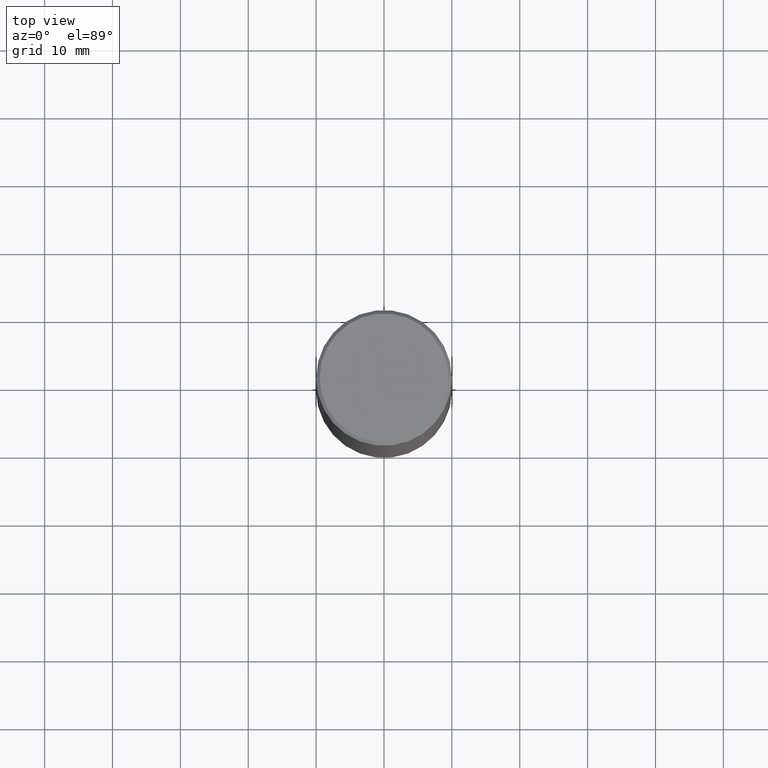
[diagram: clean part render]
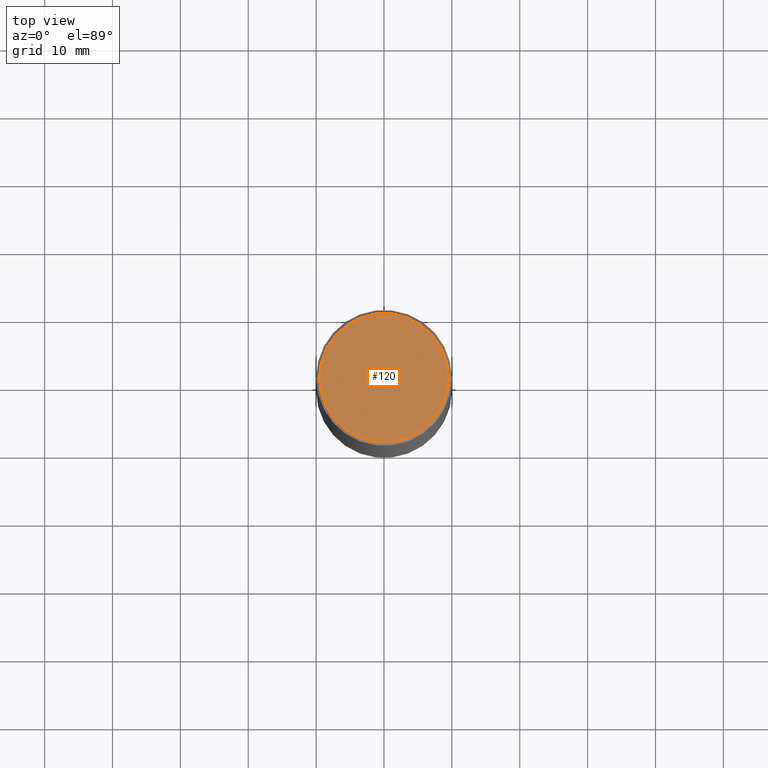
[diagram: same view with one face highlighted and labeled with its STEP entity id]
A machine part, top view. The second image highlights one B-rep face of the part: STEP entity #120.
In plain terms, the highlighted planar face has unit normal (0, -0, -1).
Its self-contained STEP definition (entity closure, byte-faithful):
#11 = CARTESIAN_POINT ( 'NONE',  ( 2.609533152651355831E-15, 0.3736999999999997546, -1.172442689132570013E-15 ) ) ;
#27 = CIRCLE ( 'NONE', #113, 0.3736999999999997546 ) ;
#53 = CARTESIAN_POINT ( 'NONE',  ( -6.471878768878362764E-45, 9.240127656358773134E-31, 2.646477743862255178E-16 ) ) ;
#60 = DIRECTION ( 'NONE',  ( -2.445468806185136597E-29, 3.491481338843145583E-15, 1.000000000000000000 ) ) ;
#87 = DIRECTION ( 'NONE',  ( -2.445468806185136597E-29, 3.491481338843145583E-15, 1.000000000000000000 ) ) ;
#98 = DIRECTION ( 'NONE',  ( 2.438088387897960049E-29, -3.491481338843145188E-15, -1.000000000000000000 ) ) ;
#101 = FACE_OUTER_BOUND ( 'NONE', #166, .T. ) ;
#113 = AXIS2_PLACEMENT_3D ( 'NONE', #53, #87, #152 ) ;
#120 = ADVANCED_FACE ( 'NONE', ( #101 ), #235, .F. ) ;
#126 = DIRECTION ( 'NONE',  ( 1.000000000000000000, -6.982962677686266711E-15, 4.877734241229879050E-29 ) ) ;
#152 = DIRECTION ( 'NONE',  ( 1.000000000000000000, -6.982962677686266711E-15, 4.877734241229879050E-29 ) ) ;
#166 = EDGE_LOOP ( 'NONE', ( #268, #413 ) ) ;
#172 = AXIS2_PLACEMENT_3D ( 'NONE', #181, #60, #126 ) ;
#176 = CARTESIAN_POINT ( 'NONE',  ( 0.3736999999999997546, -2.667287895133366781E-15, 2.646477743862439574E-16 ) ) ;
#181 = CARTESIAN_POINT ( 'NONE',  ( -6.471878768878362764E-45, 9.240127656358773134E-31, 2.646477743862255178E-16 ) ) ;
#199 = AXIS2_PLACEMENT_3D ( 'NONE', #11, #98, #328 ) ;
#235 = PLANE ( 'NONE',  #199 ) ;
#246 = VERTEX_POINT ( 'NONE', #176 ) ;
#267 = EDGE_CURVE ( 'NONE', #246, #374, #27, .T. ) ;
#268 = ORIENTED_EDGE ( 'NONE', *, *, #360, .T. ) ;
#274 = CARTESIAN_POINT ( 'NONE',  ( -0.3736999999999997546, 2.644447966039789058E-15, 2.646477743862071275E-16 ) ) ;
#328 = DIRECTION ( 'NONE',  ( -1.000000000000000000, 6.982962677686265922E-15, -4.876176775795935793E-29 ) ) ;
#360 = EDGE_CURVE ( 'NONE', #374, #246, #372, .T. ) ;
#372 = CIRCLE ( 'NONE', #172, 0.3736999999999997546 ) ;
#374 = VERTEX_POINT ( 'NONE', #274 ) ;
#413 = ORIENTED_EDGE ( 'NONE', *, *, #267, .T. ) ;